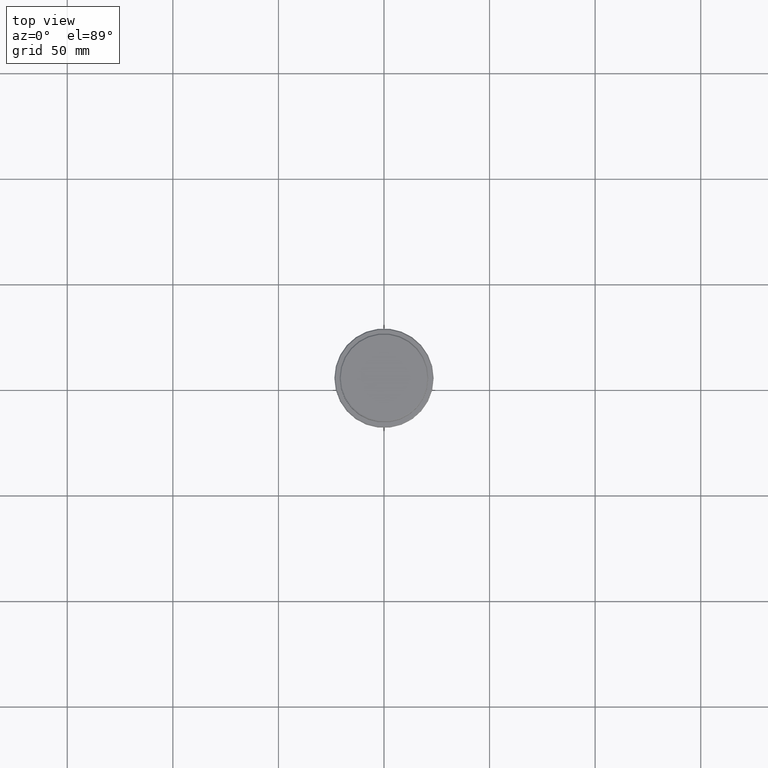
[diagram: clean part render]
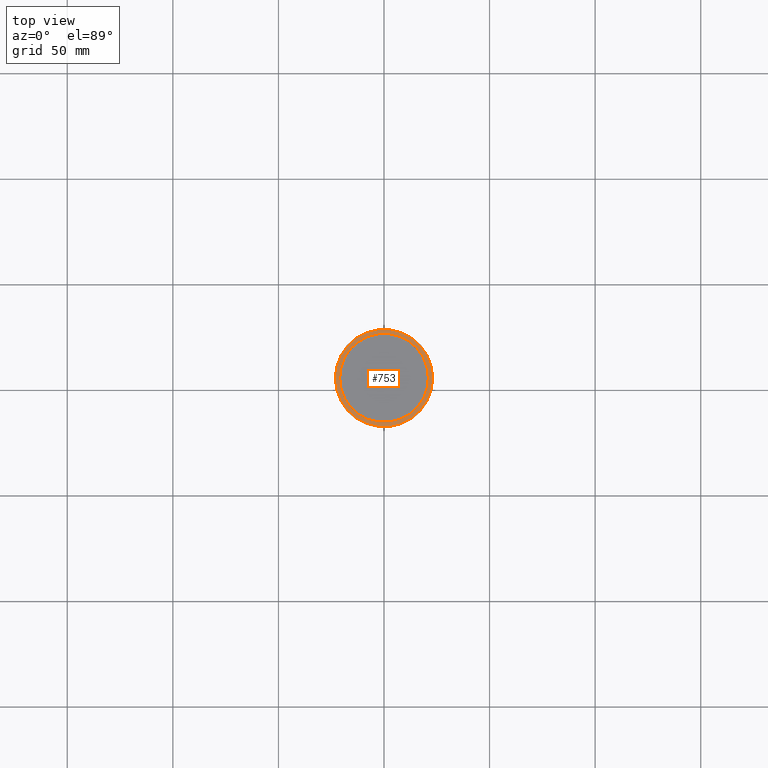
[diagram: same view with one face highlighted and labeled with its STEP entity id]
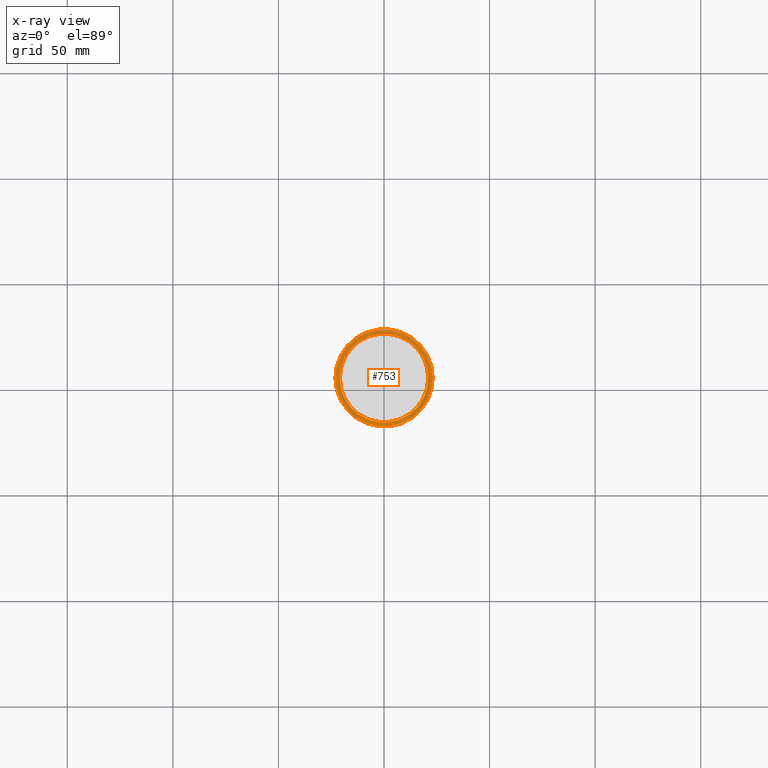
[diagram: x-ray of the same camera — body ghosted, the highlighted face saturated]
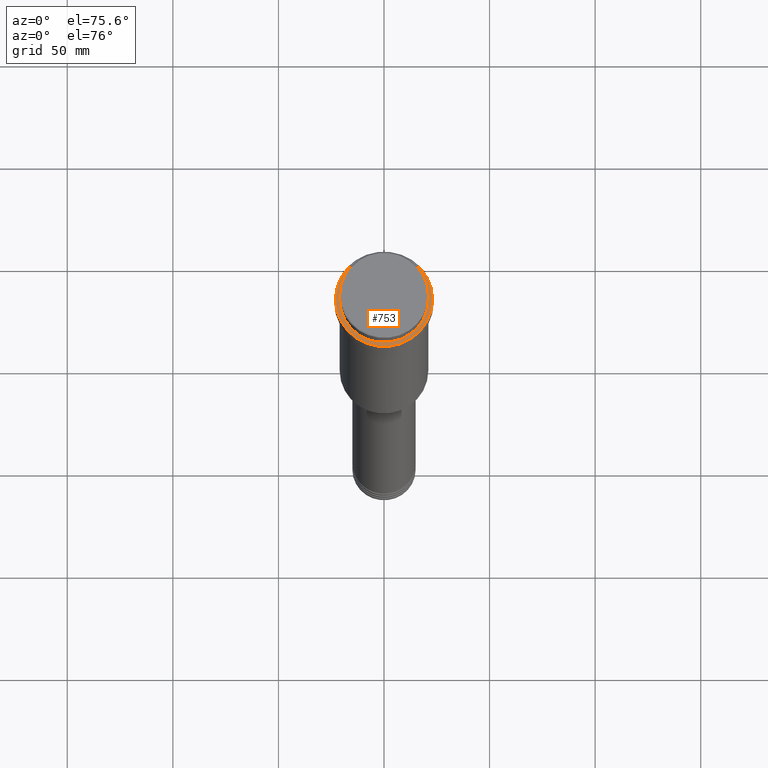
[diagram: same view with one face highlighted and labeled with its STEP entity id]
A machine part, top view. The second image highlights one B-rep face of the part: STEP entity #753.
The next image is the same camera in x-ray: the body ghosted, the highlighted face saturated — about 0% of this face is hidden behind the body in this view.
A second angle (auxiliary view) of the same face is appended — the face is thin or edge-on in the first view.
In plain terms, the highlighted planar face has unit normal (0, -0, 1).
Its self-contained STEP definition (entity closure, byte-faithful):
#27 = VERTEX_POINT ( 'NONE', #1411 ) ;
#95 = DIRECTION ( 'NONE',  ( 1.000000000000000000, 0.000000000000000000, 0.000000000000000000 ) ) ;
#106 = CARTESIAN_POINT ( 'NONE',  ( 0.000000000000000000, 0.000000000000000000, -9.000000000000001776 ) ) ;
#149 = AXIS2_PLACEMENT_3D ( 'NONE', #106, #872, #95 ) ;
#179 = PLANE ( 'NONE',  #1283 ) ;
#194 = CIRCLE ( 'NONE', #1003, 20.99999999999999289 ) ;
#201 = ORIENTED_EDGE ( 'NONE', *, *, #1054, .T. ) ;
#223 = EDGE_CURVE ( 'NONE', #330, #1149, #400, .T. ) ;
#226 = ORIENTED_EDGE ( 'NONE', *, *, #223, .T. ) ;
#286 = CARTESIAN_POINT ( 'NONE',  ( 0.000000000000000000, 20.49999999999999645, -9.000000000000001776 ) ) ;
#295 = DIRECTION ( 'NONE',  ( 0.000000000000000000, -0.000000000000000000, 1.000000000000000000 ) ) ;
#307 = ORIENTED_EDGE ( 'NONE', *, *, #362, .T. ) ;
#330 = VERTEX_POINT ( 'NONE', #529 ) ;
#351 = CARTESIAN_POINT ( 'NONE',  ( 0.000000000000000000, 0.000000000000000000, -9.000000000000001776 ) ) ;
#359 = AXIS2_PLACEMENT_3D ( 'NONE', #396, #628, #1070 ) ;
#362 = EDGE_CURVE ( 'NONE', #917, #27, #1364, .T. ) ;
#367 = CARTESIAN_POINT ( 'NONE',  ( 0.000000000000000000, 0.000000000000000000, -9.000000000000001776 ) ) ;
#396 = CARTESIAN_POINT ( 'NONE',  ( 0.000000000000000000, 0.000000000000000000, -9.000000000000001776 ) ) ;
#400 = CIRCLE ( 'NONE', #359, 20.99999999999999289 ) ;
#413 = FACE_OUTER_BOUND ( 'NONE', #1395, .T. ) ;
#529 = CARTESIAN_POINT ( 'NONE',  ( 20.99999999999999289, 0.000000000000000000, -9.000000000000001776 ) ) ;
#604 = DIRECTION ( 'NONE',  ( -0.000000000000000000, -0.000000000000000000, 1.000000000000000000 ) ) ;
#628 = DIRECTION ( 'NONE',  ( 0.000000000000000000, 0.000000000000000000, -1.000000000000000000 ) ) ;
#708 = EDGE_LOOP ( 'NONE', ( #226, #201 ) ) ;
#741 = DIRECTION ( 'NONE',  ( 1.000000000000000000, 0.000000000000000000, 0.000000000000000000 ) ) ;
#753 = ADVANCED_FACE ( 'NONE', ( #413, #937 ), #179, .T. ) ;
#788 = DIRECTION ( 'NONE',  ( 0.000000000000000000, 0.000000000000000000, -1.000000000000000000 ) ) ;
#809 = DIRECTION ( 'NONE',  ( 1.000000000000000000, 0.000000000000000000, 0.000000000000000000 ) ) ;
#860 = CIRCLE ( 'NONE', #1198, 23.00000000000002487 ) ;
#872 = DIRECTION ( 'NONE',  ( -0.000000000000000000, -0.000000000000000000, 1.000000000000000000 ) ) ;
#917 = VERTEX_POINT ( 'NONE', #1183 ) ;
#932 = EDGE_CURVE ( 'NONE', #27, #917, #860, .T. ) ;
#937 = FACE_BOUND ( 'NONE', #708, .T. ) ;
#1003 = AXIS2_PLACEMENT_3D ( 'NONE', #351, #788, #1130 ) ;
#1054 = EDGE_CURVE ( 'NONE', #1149, #330, #194, .T. ) ;
#1070 = DIRECTION ( 'NONE',  ( 1.000000000000000000, 0.000000000000000000, 0.000000000000000000 ) ) ;
#1083 = ORIENTED_EDGE ( 'NONE', *, *, #932, .T. ) ;
#1130 = DIRECTION ( 'NONE',  ( 1.000000000000000000, 0.000000000000000000, 0.000000000000000000 ) ) ;
#1149 = VERTEX_POINT ( 'NONE', #1271 ) ;
#1183 = CARTESIAN_POINT ( 'NONE',  ( 23.00000000000002487, 2.847303808017597717E-15, -9.000000000000001776 ) ) ;
#1198 = AXIS2_PLACEMENT_3D ( 'NONE', #367, #604, #809 ) ;
#1271 = CARTESIAN_POINT ( 'NONE',  ( -20.99999999999999289, 2.571758278209440872E-15, -9.000000000000001776 ) ) ;
#1283 = AXIS2_PLACEMENT_3D ( 'NONE', #286, #295, #741 ) ;
#1364 = CIRCLE ( 'NONE', #149, 23.00000000000002487 ) ;
#1395 = EDGE_LOOP ( 'NONE', ( #1083, #307 ) ) ;
#1411 = CARTESIAN_POINT ( 'NONE',  ( -23.00000000000002487, 0.000000000000000000, -9.000000000000001776 ) ) ;